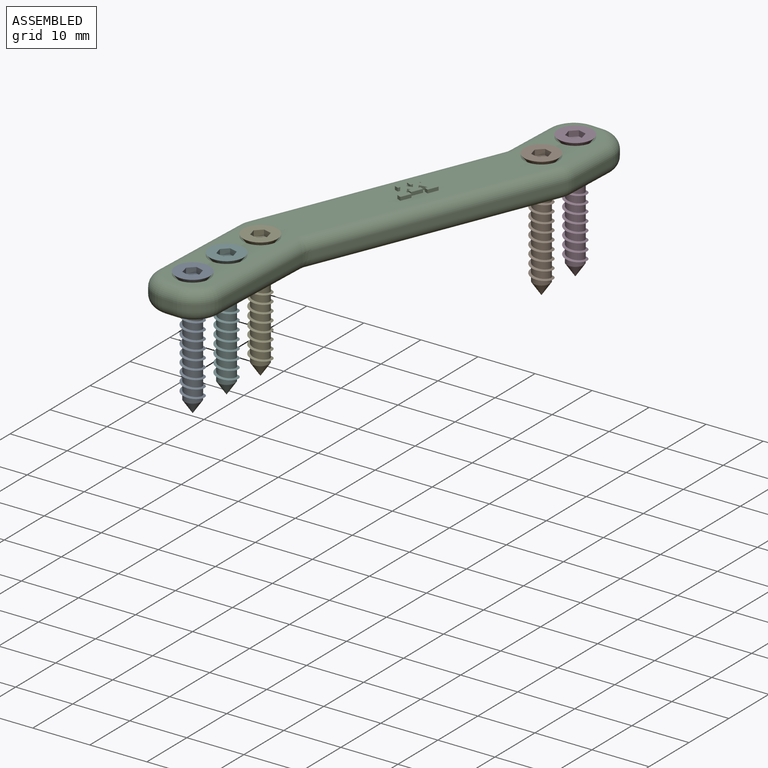
[diagram: assembled view]
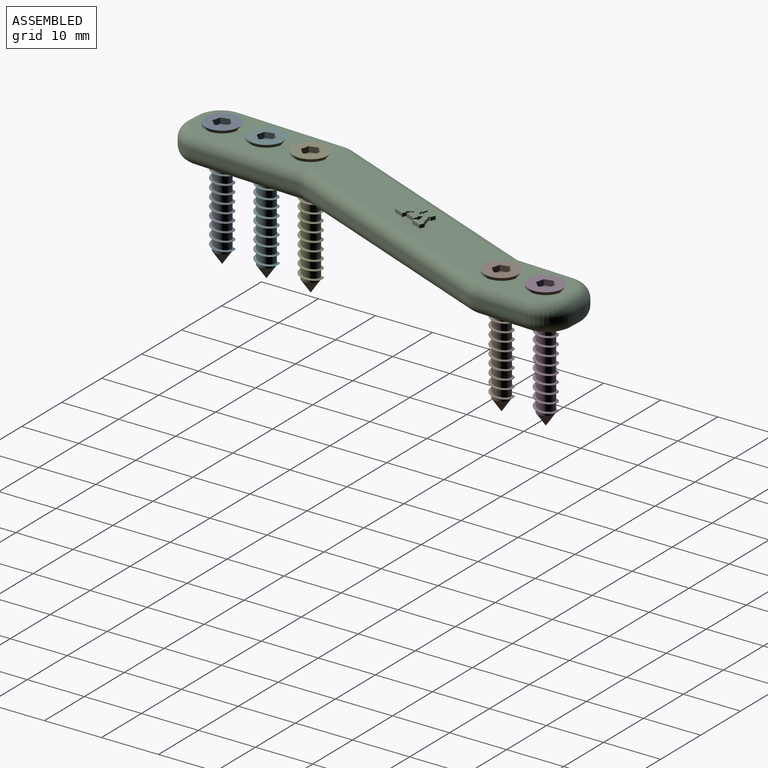
[diagram: assembled view, second angle]
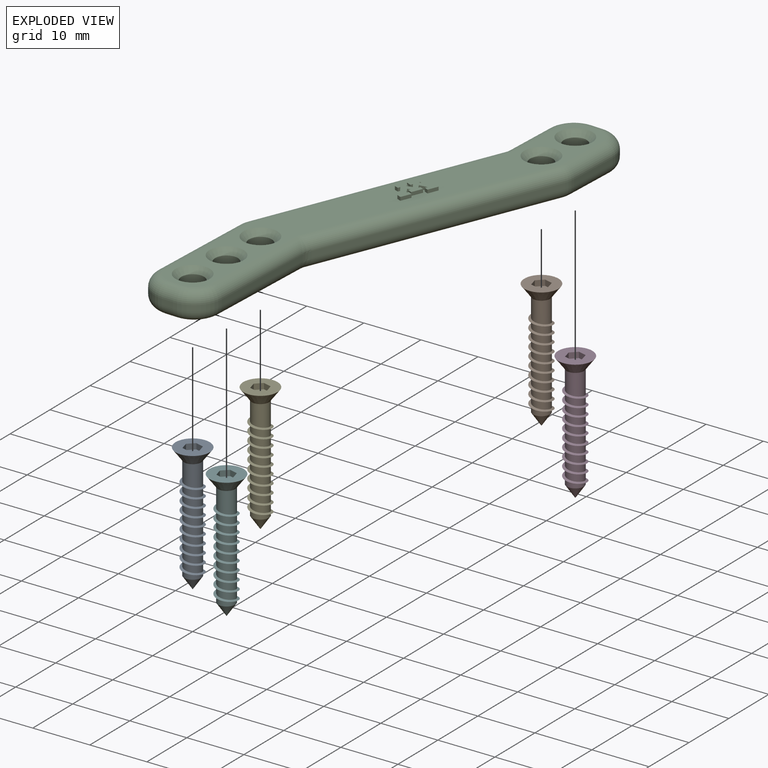
[diagram: exploded view]
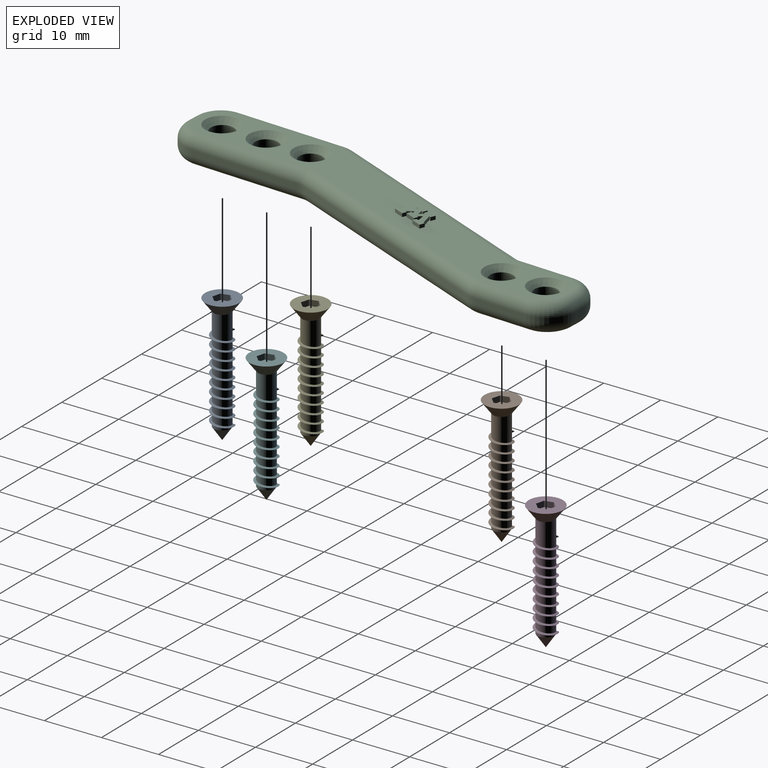
[diagram: exploded view, second angle]
ASSEMBLY  parts=6 mates=5
PART A: 25 faces, bbox 6x22.5x6 mm
  f0: plane 6x6mm, normal (0,1,0), area 22.4mm2, adj f12,f18,f19,f20,f21,f22,f23
  f1: cylinder r=1.5mm len=4.5mm, axis (0,1,0), area 35.3mm2, adj f2,f12,f13,f15
  f2: cylinder r=1.5mm len=3mm, axis (0,1,0), area 11.3mm2, adj f1,f3,f15,f16
  f3: cylinder r=1.5mm len=3mm, axis (0,1,0), area 11.3mm2, adj f2,f4,f15,f16
  f4: cylinder r=1.5mm len=3mm, axis (0,1,0), area 11.3mm2, adj f3,f5,f15,f16
  f5: cylinder r=1.5mm len=3mm, axis (0,1,0), area 11.3mm2, adj f4,f6,f15,f16
  f6: cylinder r=1.5mm len=3mm, axis (0,1,0), area 11.3mm2, adj f5,f7,f15,f16
  f7: cylinder r=1.5mm len=3mm, axis (0,1,0), area 11.3mm2, adj f6,f8,f15,f16
  f8: cylinder r=1.5mm len=3mm, axis (0,1,0), area 11.3mm2, adj f7,f9,f15,f16
  f9: cylinder r=1.5mm len=3mm, axis (0,1,0), area 11.3mm2, adj f8,f10,f15,f16
  f10: cylinder r=1.5mm len=3mm, axis (0,1,0), area 11.3mm2, adj f9,f11,f15,f16
  f11: cylinder r=1.5mm len=3mm, axis (0,1,0), area 7.1mm2, adj f10,f14,f16,f17
  f12: cone r=1.5mm half-angle=36.9deg, axis (0,1,0), area 35.3mm2, adj f0,f1
  f13: plane 0.4x0.3mm, normal (-1,0,0), area 0.1mm2, adj f1,f15,f16
  f14: plane 0.4x0.3mm, normal (1,0,0), area 0.1mm2, adj f11,f15,f16
  f15: bspline ~15.15x4.39mm, area 45.9mm2, adj f1,f2,f3,f4,f5,f6,f7,f8
  f16: bspline ~15.15x4.39mm, area 46mm2, adj f2,f3,f4,f5,f6,f7,f8,f9
  f17: cone r=1.5mm half-angle=34.3deg, axis (0,1,0), area 12.5mm2, adj f11
  f18: plane 1.5x1mm, normal (0,0,-1), area 1.5mm2, adj f0,f19,f23,f24
  f19: plane 1.3x1mm, normal (-0.87,0,-0.5), area 1.5mm2, adj f0,f18,f20,f24
  f20: plane 1.3x1mm, normal (-0.87,0,0.5), area 1.5mm2, adj f0,f19,f21,f24
  f21: plane 1.5x1mm, normal (0,0,1), area 1.5mm2, adj f0,f20,f22,f24
  f22: plane 1.3x1mm, normal (0.87,0,0.5), area 1.5mm2, adj f0,f21,f23,f24
  f23: plane 1.3x1mm, normal (0.87,0,-0.5), area 1.5mm2, adj f0,f18,f22,f24
  f24: plane 3x2.6mm, normal (0,1,0), area 5.8mm2, adj f18,f19,f20,f21,f22,f23
PART B: same geometry as A
PART C: 94 faces, bbox 83.1x28.2x5.6 mm
  f0: plane 78.29x23.39mm, normal (0,0,1), area 452.6mm2, adj f23,f24,f25,f26,f27,f28,f29,f30
  f1: plane 78.29x23.39mm, normal (0,0,-1), area 544.8mm2, adj f10,f11,f12,f13,f14,f15,f16,f17
  f2: plane 2x1mm, normal (-1,0,0), area 2mm2, adj f18,f26,f44,f47
  f3: plane 19.12x1mm, normal (0,-1,0), area 19.1mm2, adj f16,f24,f47,f50
  f4: plane 40.63x14.79mm, normal (-0.34,-0.94,0), area 43.2mm2, adj f15,f23,f41,f50
  f5: plane 9.12x1mm, normal (0,-1,0), area 9.1mm2, adj f17,f25,f38,f41
  f6: plane 2x1mm, normal (1,0,0), area 2mm2, adj f19,f27,f35,f38
  f7: plane 9.12x1mm, normal (0,1,0), area 9.1mm2, adj f21,f29,f35,f53
  f8: plane 40.63x14.79mm, normal (0.34,0.94,0), area 43.2mm2, adj f22,f30,f32,f53
  f9: plane 19.12x1mm, normal (0,1,0), area 19.1mm2, adj f20,f28,f32,f44
  f10: cylinder r=2mm len=4mm, axis (0,0,1), area 50.3mm2, adj f1,f55
  f11: cylinder r=2mm len=4mm, axis (0,0,1), area 50.3mm2, adj f1,f58
  f12: cylinder r=2mm len=4mm, axis (0,0,1), area 50.3mm2, adj f1,f59
  f13: cylinder r=2mm len=4mm, axis (0,0,1), area 50.3mm2, adj f1,f56
  f14: cylinder r=2mm len=4mm, axis (0,0,1), area 50.3mm2, adj f1,f57
  f15: cylinder r=2mm len=42.47mm, axis (0.94,-0.34,0), area 137.2mm2, adj f1,f4,f42,f49
  f16: cylinder r=2mm len=20.35mm, axis (1,0,0), area 61.5mm2, adj f1,f3,f48,f49
  f17: cylinder r=2mm len=9.12mm, axis (1,0,0), area 28.6mm2, adj f1,f5,f39,f42
  f18: cylinder r=2mm len=2mm, axis (0,-1,0), area 6.3mm2, adj f1,f2,f45,f48
  f19: cylinder r=2mm len=2mm, axis (0,1,0), area 6.3mm2, adj f1,f6,f36,f39
  f20: cylinder r=2mm len=19.12mm, axis (-1,0,0), area 60.1mm2, adj f1,f9,f33,f45
  f21: cylinder r=2mm len=10.35mm, axis (-1,0,0), area 30.1mm2, adj f1,f7,f36,f52
  f22: cylinder r=2mm len=42.47mm, axis (-0.94,0.34,0), area 137.2mm2, adj f1,f8,f33,f52
  f23: cylinder r=2mm len=42.47mm, axis (-0.94,0.34,0), area 137.2mm2, adj f0,f4,f40,f51
  f24: cylinder r=2mm len=20.35mm, axis (-1,0,0), area 61.5mm2, adj f0,f3,f46,f51
  f25: cylinder r=2mm len=9.12mm, axis (-1,0,0), area 28.6mm2, adj f0,f5,f37,f40
  f26: cylinder r=2mm len=2mm, axis (0,1,0), area 6.3mm2, adj f0,f2,f43,f46
  f27: cylinder r=2mm len=2mm, axis (0,-1,0), area 6.3mm2, adj f0,f6,f34,f37
  f28: cylinder r=2mm len=19.12mm, axis (1,0,0), area 60.1mm2, adj f0,f9,f31,f43
  f29: cylinder r=2mm len=10.35mm, axis (1,0,0), area 30.1mm2, adj f0,f7,f34,f54
  f30: cylinder r=2mm len=42.47mm, axis (0.94,-0.34,0), area 137.2mm2, adj f0,f8,f31,f54
  f31: torus R=3mm, axis (0,0,1), area 4.7mm2, adj f0,f28,f30,f32
  f32: cylinder r=5mm len=1.71mm, axis (0,0,-1), area 1.7mm2, adj f8,f9,f31,f33
  f33: torus R=3mm, axis (0,0,1), area 4.7mm2, adj f1,f20,f22,f32
  f34: torus R=3mm, axis (0,0,1), area 21.1mm2, adj f0,f27,f29,f35
  f35: cylinder r=5mm len=5mm, axis (0,0,1), area 7.9mm2, adj f6,f7,f34,f36
  f36: torus R=3mm, axis (0,0,1), area 21.1mm2, adj f1,f19,f21,f35
  f37: torus R=3mm, axis (0,0,1), area 21.1mm2, adj f0,f25,f27,f38
  f38: cylinder r=5mm len=5mm, axis (0,0,-1), area 7.9mm2, adj f5,f6,f37,f39
  f39: torus R=3mm, axis (0,0,1), area 21.1mm2, adj f1,f17,f19,f38
  f40: torus R=3mm, axis (0,0,1), area 4.7mm2, adj f0,f23,f25,f41
  f41: cylinder r=5mm len=1.71mm, axis (0,0,-1), area 1.7mm2, adj f4,f5,f40,f42
  f42: torus R=3mm, axis (0,0,1), area 4.7mm2, adj f1,f15,f17,f41
  f43: torus R=3mm, axis (0,0,1), area 21.1mm2, adj f0,f26,f28,f44
  f44: cylinder r=5mm len=5mm, axis (0,0,1), area 7.9mm2, adj f2,f9,f43,f45
  f45: torus R=3mm, axis (0,0,1), area 21.1mm2, adj f1,f18,f20,f44
  f46: torus R=3mm, axis (0,0,1), area 21.1mm2, adj f0,f24,f26,f47
  f47: cylinder r=5mm len=5mm, axis (0,0,-1), area 7.9mm2, adj f2,f3,f46,f48
  f48: torus R=3mm, axis (0,0,1), area 21.1mm2, adj f1,f16,f18,f47
  f49: bspline ~2.3x2.26mm, area 3.5mm2, adj f15,f16,f50
  f50: cylinder r=5mm len=1.71mm, axis (0,0,1), area 1.7mm2, adj f3,f4,f49,f51
  f51: bspline ~2.3x2.26mm, area 3.5mm2, adj f23,f24,f50
  f52: bspline ~2.3x2.26mm, area 3.5mm2, adj f21,f22,f53
  f53: cylinder r=5mm len=1.71mm, axis (0,0,1), area 1.7mm2, adj f7,f8,f52,f54
  f54: bspline ~2.3x2.26mm, area 3.5mm2, adj f29,f30,f53
  f55: cone r=2mm half-angle=45deg, axis (0,0,1), area 22.2mm2, adj f0,f10
  f56: cone r=2mm half-angle=45deg, axis (0,0,1), area 22.2mm2, adj f0,f13
  f57: cone r=2mm half-angle=45deg, axis (0,0,1), area 22.2mm2, adj f0,f14
  f58: cone r=2mm half-angle=45deg, axis (0,0,1), area 22.2mm2, adj f0,f11
  f59: cone r=2mm half-angle=45deg, axis (0,0,1), area 22.2mm2, adj f0,f12
  f60: plane 2.01x1.45mm, normal (-0.59,0.81,0), area 1.5mm2, adj f0,f61,f92,f93
  f61: plane 0.6x0.38mm, normal (0.39,0.92,0), area 0.2mm2, adj f0,f60,f62,f93
  f62: plane 0.75x0.6mm, normal (-0.94,0.33,0), area 0.5mm2, adj f0,f61,f63,f93
  f63: plane 1.79x0.65mm, normal (-0.34,-0.94,0), area 1.1mm2, adj f0,f62,f64,f93
  f64: plane 0.75x0.6mm, normal (0.94,-0.34,0), area 0.5mm2, adj f0,f63,f65,f93
  f65: plane 0.6x0.27mm, normal (0.34,0.94,0), area 0.2mm2, adj f0,f64,f66,f93
  f66: plane 1.01x0.73mm, normal (0.59,-0.81,0), area 0.8mm2, adj f0,f65,f67,f93
  f67: plane 0.6x0.51mm, normal (-0.98,-0.2,0), area 0.3mm2, adj f0,f66,f68,f93
  f68: plane 0.6x0.36mm, normal (0.34,0.94,0), area 0.2mm2, adj f0,f67,f69,f93
  f69: plane 0.79x0.6mm, normal (-0.94,0.34,0), area 0.5mm2, adj f0,f68,f70,f93
  f70: plane 1.91x0.69mm, normal (-0.34,-0.94,0), area 1.2mm2, adj f0,f69,f71,f93
  f71: plane 0.69x0.6mm, normal (0.94,-0.34,0), area 0.4mm2, adj f0,f70,f72,f93
  f72: plane 0.6x0.27mm, normal (0.34,0.94,0), area 0.2mm2, adj f0,f71,f73,f93
  f73: plane 0.65x0.6mm, normal (0.6,-0.8,0), area 0.5mm2, adj f0,f72,f74,f93
  f74: plane 1.43x0.6mm, normal (-0.98,-0.17,0), area 0.9mm2, adj f0,f73,f75,f93
  f75: plane 0.6x0.46mm, normal (0.34,0.94,0), area 0.3mm2, adj f0,f74,f76,f93
  f76: plane 0.68x0.6mm, normal (-0.94,0.34,0), area 0.4mm2, adj f0,f75,f77,f93
  f77: plane 1.79x0.65mm, normal (-0.34,-0.94,0), area 1.1mm2, adj f0,f76,f78,f93
  f78: plane 0.84x0.6mm, normal (0.94,-0.34,0), area 0.5mm2, adj f0,f77,f79,f93
  f79: plane 0.6x0.31mm, normal (0.34,0.94,0), area 0.2mm2, adj f0,f78,f80,f93
  f80: plane 2.21x0.61mm, normal (0.96,0.27,0), area 1.4mm2, adj f0,f79,f81,f93
  f81: plane 0.6x0.3mm, normal (-0.51,-0.86,0), area 0.2mm2, adj f0,f80,f82,f93
  f82: plane 0.84x0.6mm, normal (0.94,-0.34,0), area 0.5mm2, adj f0,f81,f83,f93
  f83: plane 1.67x0.61mm, normal (0.34,0.94,0), area 1.1mm2, adj f0,f82,f84,f93
  f84: plane 0.85x0.6mm, normal (-0.94,0.34,0), area 0.5mm2, adj f0,f83,f85,f93
  f85: plane 0.6x0.41mm, normal (-0.34,-0.94,0), area 0.3mm2, adj f0,f84,f86,f93
  f86: plane 0.81x0.6mm, normal (-0.59,0.81,0), area 0.6mm2, adj f0,f85,f87,f93
  f87: plane 1.05x0.6mm, normal (0.98,0.2,0), area 0.6mm2, adj f0,f86,f88,f93
  f88: plane 0.6x0.33mm, normal (-0.34,-0.94,0), area 0.2mm2, adj f0,f87,f89,f93
  f89: plane 0.74x0.6mm, normal (0.94,-0.34,0), area 0.5mm2, adj f0,f88,f90,f93
  f90: plane 1.64x0.6mm, normal (0.34,0.94,0), area 1mm2, adj f0,f89,f91,f93
  f91: plane 0.69x0.6mm, normal (-0.94,0.34,0), area 0.4mm2, adj f0,f90,f92,f93
  f92: plane 0.6x0.42mm, normal (-0.34,-0.94,0), area 0.3mm2, adj f0,f60,f91,f93
  f93: plane 6.43x5.12mm, normal (0,0,1), area 13.7mm2, adj f60,f61,f62,f63,f64,f65,f66,f67
PART D: same geometry as A
PART E: same geometry as A
PART F: same geometry as A
PLACE A rot(axis=(0.28,-0.68,-0.68),148.8deg) t=(12.3,-23.24,51.79)mm
PLACE B rot(axis=(0.28,-0.68,-0.68),148.8deg) t=(30.31,38.34,51.79)mm
PLACE C rot(axis=(0,0,1),87.6deg) t=(6.05,-28.98,46.36)mm
PLACE D rot(axis=(0.28,-0.68,-0.68),148.8deg) t=(30.65,46.33,51.79)mm
PLACE E rot(axis=(0.28,-0.68,-0.68),148.8deg) t=(12.97,-7.26,51.79)mm
PLACE F rot(axis=(0.28,-0.68,-0.68),148.8deg) t=(12.64,-15.25,51.79)mm
MATE cylindrical F.f1 <-> C.f11  axis (0,0,1) through (12.64,-15.25,49.79)mm
MATE cylindrical B.f1 <-> C.f13  axis (0,0,1) through (30.31,38.34,49.79)mm
MATE cylindrical A.f1 <-> C.f14  axis (0,0,1) through (12.3,-23.24,49.79)mm
MATE cylindrical D.f1 <-> C.f10  axis (0,0,1) through (30.65,46.33,49.79)mm
MATE cylindrical E.f1 <-> C.f12  axis (0,0,1) through (12.97,-7.26,49.79)mm
